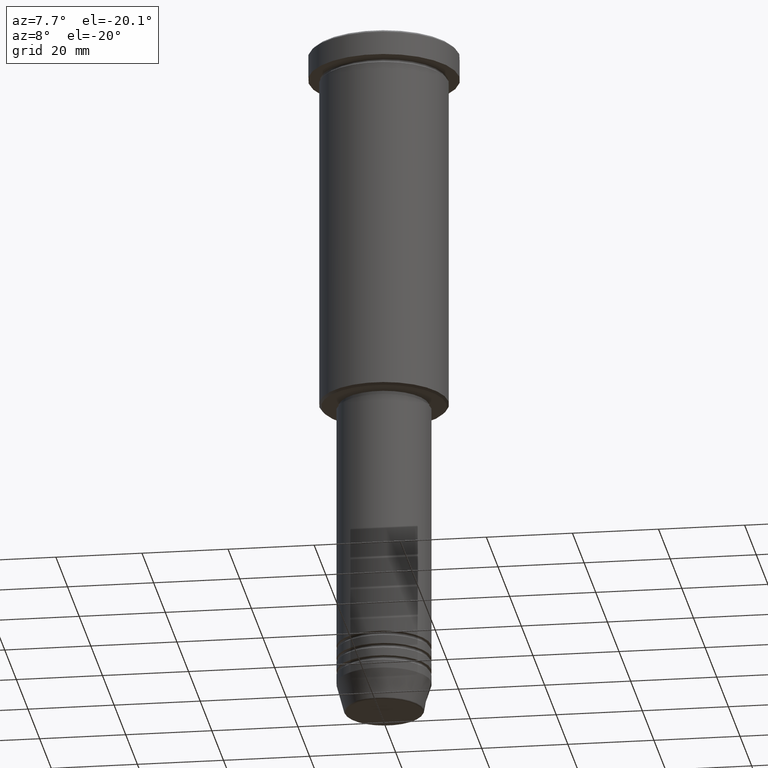
[diagram: clean part render]
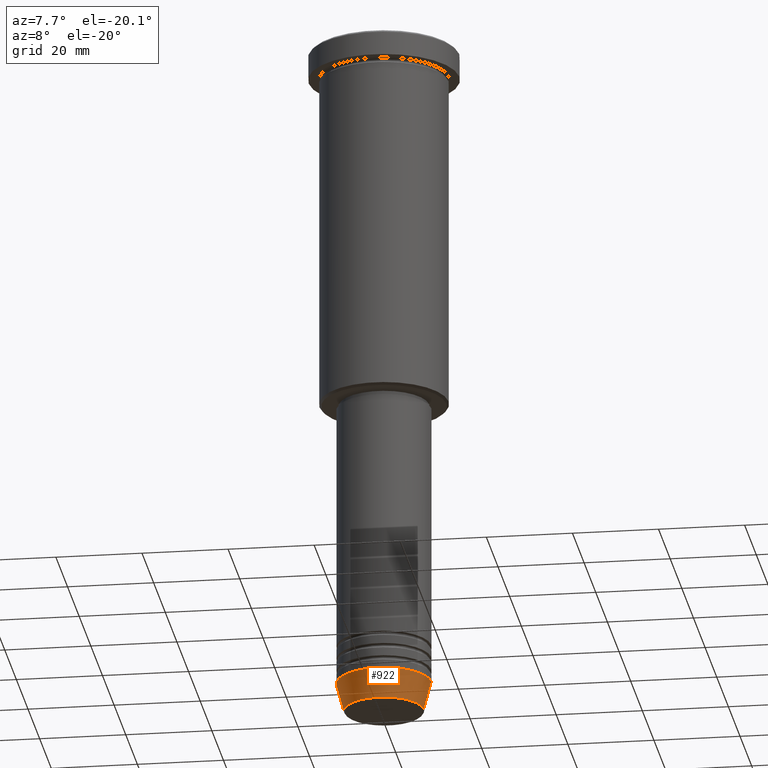
[diagram: same view with one face highlighted and labeled with its STEP entity id]
A machine part, auxiliary view. The second image highlights one B-rep face of the part: STEP entity #922.
In plain terms, the highlighted conical surface has half-angle 15 deg.
Its self-contained STEP definition (entity closure, byte-faithful):
#17 = CARTESIAN_POINT ( 'NONE',  ( 0.000000000000000000, 0.000000000000000000, -154.0000000000000000 ) ) ;
#19 = CIRCLE ( 'NONE', #102, 11.00000000000000000 ) ;
#52 = DIRECTION ( 'NONE',  ( -0.000000000000000000, -0.000000000000000000, 1.000000000000000000 ) ) ;
#64 = VECTOR ( 'NONE', #583, 1000.000000000000000 ) ;
#75 = ORIENTED_EDGE ( 'NONE', *, *, #977, .T. ) ;
#102 = AXIS2_PLACEMENT_3D ( 'NONE', #866, #52, #424 ) ;
#154 = CARTESIAN_POINT ( 'NONE',  ( -9.223655072137194821, 1.238341722557647596E-15, -160.6294095225512137 ) ) ;
#211 = VERTEX_POINT ( 'NONE', #491 ) ;
#215 = VECTOR ( 'NONE', #752, 1000.000000000000000 ) ;
#221 = CARTESIAN_POINT ( 'NONE',  ( 11.00000000000000000, 0.000000000000000000, -154.0000000000000000 ) ) ;
#286 = LINE ( 'NONE', #489, #215 ) ;
#297 = CARTESIAN_POINT ( 'NONE',  ( 9.223655072137194821, 0.000000000000000000, -160.6294095225512137 ) ) ;
#312 = AXIS2_PLACEMENT_3D ( 'NONE', #638, #721, #1002 ) ;
#317 = VERTEX_POINT ( 'NONE', #154 ) ;
#326 = EDGE_CURVE ( 'NONE', #211, #615, #19, .T. ) ;
#351 = AXIS2_PLACEMENT_3D ( 'NONE', #17, #707, #376 ) ;
#376 = DIRECTION ( 'NONE',  ( 1.000000000000000000, 0.000000000000000000, 0.000000000000000000 ) ) ;
#406 = EDGE_LOOP ( 'NONE', ( #986, #1060, #75, #714 ) ) ;
#424 = DIRECTION ( 'NONE',  ( 1.000000000000000000, 0.000000000000000000, 0.000000000000000000 ) ) ;
#437 = CONICAL_SURFACE ( 'NONE', #351, 11.00000000000000000, 0.2617993877991500740 ) ;
#460 = EDGE_CURVE ( 'NONE', #317, #545, #691, .T. ) ;
#489 = CARTESIAN_POINT ( 'NONE',  ( -11.00000000000000000, 1.347111479062088405E-15, -154.0000000000000000 ) ) ;
#491 = CARTESIAN_POINT ( 'NONE',  ( -11.00000000000000000, 1.347111479062088405E-15, -154.0000000000000000 ) ) ;
#545 = VERTEX_POINT ( 'NONE', #297 ) ;
#583 = DIRECTION ( 'NONE',  ( 0.2588190451025213501, 0.000000000000000000, 0.9659258262890680902 ) ) ;
#600 = EDGE_CURVE ( 'NONE', #317, #211, #286, .T. ) ;
#615 = VERTEX_POINT ( 'NONE', #1019 ) ;
#638 = CARTESIAN_POINT ( 'NONE',  ( 0.000000000000000000, 0.000000000000000000, -160.6294095225512137 ) ) ;
#680 = LINE ( 'NONE', #221, #64 ) ;
#691 = CIRCLE ( 'NONE', #312, 9.223655072137194821 ) ;
#707 = DIRECTION ( 'NONE',  ( -0.000000000000000000, -0.000000000000000000, 1.000000000000000000 ) ) ;
#714 = ORIENTED_EDGE ( 'NONE', *, *, #326, .F. ) ;
#715 = FACE_OUTER_BOUND ( 'NONE', #406, .T. ) ;
#721 = DIRECTION ( 'NONE',  ( -0.000000000000000000, -0.000000000000000000, 1.000000000000000000 ) ) ;
#752 = DIRECTION ( 'NONE',  ( -0.2588190451025213501, 3.169619151431772337E-17, 0.9659258262890680902 ) ) ;
#866 = CARTESIAN_POINT ( 'NONE',  ( 0.000000000000000000, 0.000000000000000000, -154.0000000000000000 ) ) ;
#922 = ADVANCED_FACE ( 'NONE', ( #715 ), #437, .T. ) ;
#977 = EDGE_CURVE ( 'NONE', #545, #615, #680, .T. ) ;
#986 = ORIENTED_EDGE ( 'NONE', *, *, #600, .F. ) ;
#1002 = DIRECTION ( 'NONE',  ( 1.000000000000000000, 0.000000000000000000, 0.000000000000000000 ) ) ;
#1019 = CARTESIAN_POINT ( 'NONE',  ( 11.00000000000000000, 0.000000000000000000, -154.0000000000000000 ) ) ;
#1060 = ORIENTED_EDGE ( 'NONE', *, *, #460, .T. ) ;